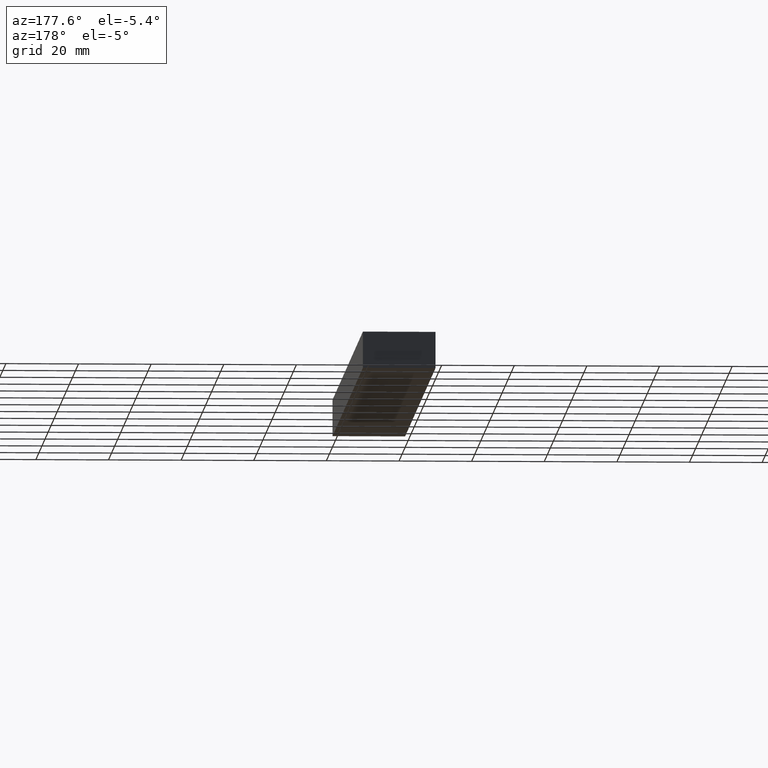
[diagram: clean part render]
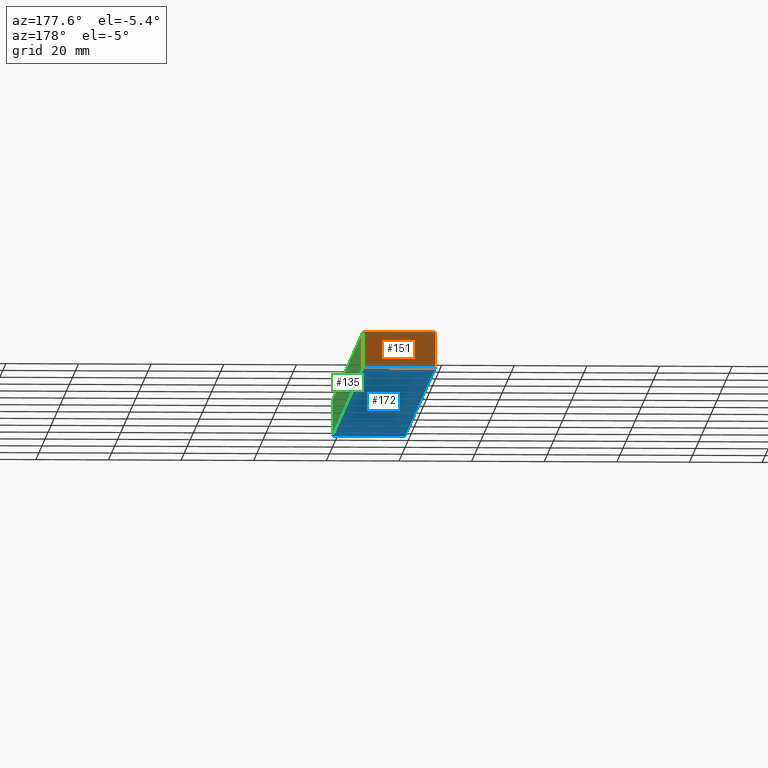
[diagram: same view with three faces highlighted in distinct colors, each labeled with its STEP entity id]
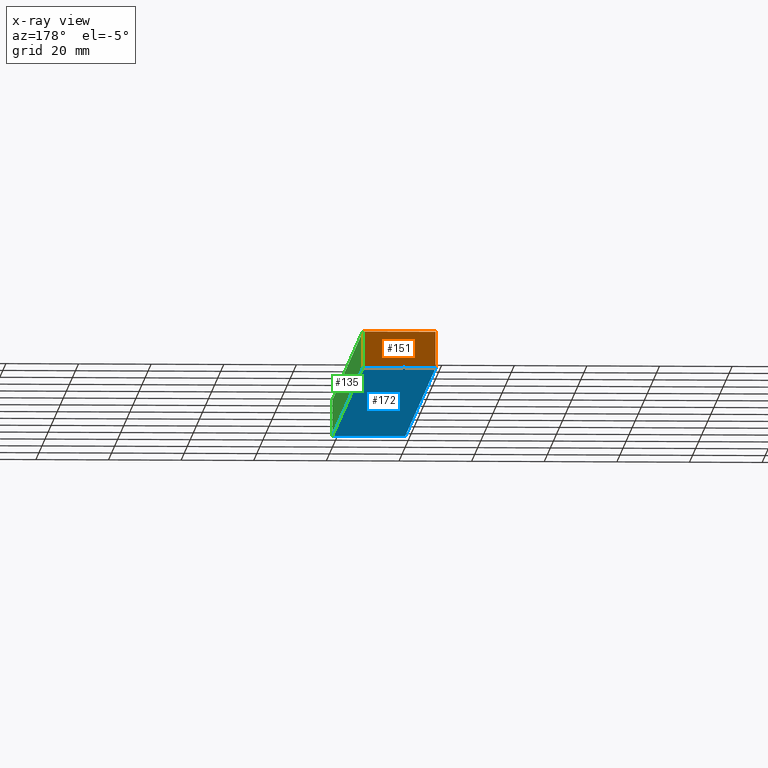
[diagram: x-ray of the same camera — body ghosted, the three highlighted faces saturated]
A machine part, auxiliary view with three faces highlighted in distinct colors.
The next image is the same camera in x-ray (body ghosted, the three faces saturated) — at least one of them is partly hidden behind the body in this view.
Their STEP definitions:

[orange] entity #151 — the highlighted planar face has unit normal (0, 1, 0).
#6 = LINE ( 'NONE', #89, #43 ) ;
#19 = ORIENTED_EDGE ( 'NONE', *, *, #87, .F. ) ;
#32 = CARTESIAN_POINT ( 'NONE',  ( 0.0000000000000000000, 200.0000000000000000, 0.0000000000000000000 ) ) ;
#34 = DIRECTION ( 'NONE',  ( -0.0000000000000000000, -0.0000000000000000000, -1.000000000000000000 ) ) ;
#36 = PLANE ( 'NONE',  #60 ) ;
#42 = FACE_OUTER_BOUND ( 'NONE', #160, .T. ) ;
#43 = VECTOR ( 'NONE', #212, 1000.000000000000000 ) ;
#48 = DIRECTION ( 'NONE',  ( -0.0000000000000000000, -0.0000000000000000000, 1.000000000000000000 ) ) ;
#59 = VERTEX_POINT ( 'NONE', #32 ) ;
#60 = AXIS2_PLACEMENT_3D ( 'NONE', #199, #178, #180 ) ;
#78 = EDGE_CURVE ( 'NONE', #203, #189, #177, .T. ) ;
#85 = VECTOR ( 'NONE', #233, 1000.000000000000000 ) ;
#87 = EDGE_CURVE ( 'NONE', #59, #203, #179, .T. ) ;
#89 = CARTESIAN_POINT ( 'NONE',  ( 0.0000000000000000000, 200.0000000000000000, 10.00000000000000000 ) ) ;
#98 = CARTESIAN_POINT ( 'NONE',  ( 20.00000000000000000, 200.0000000000000000, 10.00000000000000000 ) ) ;
#108 = VERTEX_POINT ( 'NONE', #217 ) ;
#117 = CARTESIAN_POINT ( 'NONE',  ( 0.0000000000000000000, 200.0000000000000000, 0.0000000000000000000 ) ) ;
#124 = CARTESIAN_POINT ( 'NONE',  ( 20.00000000000000000, 200.0000000000000000, 0.0000000000000000000 ) ) ;
#125 = ORIENTED_EDGE ( 'NONE', *, *, #184, .F. ) ;
#138 = VECTOR ( 'NONE', #48, 1000.000000000000000 ) ;
#151 = ADVANCED_FACE ( 'NONE', ( #42 ), #36, .T. ) ;
#154 = CARTESIAN_POINT ( 'NONE',  ( 20.00000000000000000, 200.0000000000000000, 0.0000000000000000000 ) ) ;
#160 = EDGE_LOOP ( 'NONE', ( #19, #222, #125, #209 ) ) ;
#161 = LINE ( 'NONE', #168, #220 ) ;
#168 = CARTESIAN_POINT ( 'NONE',  ( 0.0000000000000000000, 200.0000000000000000, 0.0000000000000000000 ) ) ;
#171 = EDGE_CURVE ( 'NONE', #108, #59, #161, .T. ) ;
#177 = LINE ( 'NONE', #124, #138 ) ;
#178 = DIRECTION ( 'NONE',  ( -0.0000000000000000000, 1.000000000000000000, 0.0000000000000000000 ) ) ;
#179 = LINE ( 'NONE', #117, #85 ) ;
#180 = DIRECTION ( 'NONE',  ( 1.000000000000000000, 0.0000000000000000000, 0.0000000000000000000 ) ) ;
#184 = EDGE_CURVE ( 'NONE', #189, #108, #6, .T. ) ;
#189 = VERTEX_POINT ( 'NONE', #98 ) ;
#199 = CARTESIAN_POINT ( 'NONE',  ( 0.0000000000000000000, 200.0000000000000000, 0.0000000000000000000 ) ) ;
#203 = VERTEX_POINT ( 'NONE', #154 ) ;
#209 = ORIENTED_EDGE ( 'NONE', *, *, #78, .F. ) ;
#212 = DIRECTION ( 'NONE',  ( -1.000000000000000000, -0.0000000000000000000, -0.0000000000000000000 ) ) ;
#217 = CARTESIAN_POINT ( 'NONE',  ( 0.0000000000000000000, 200.0000000000000000, 10.00000000000000000 ) ) ;
#220 = VECTOR ( 'NONE', #34, 1000.000000000000000 ) ;
#222 = ORIENTED_EDGE ( 'NONE', *, *, #171, .F. ) ;
#233 = DIRECTION ( 'NONE',  ( 1.000000000000000000, -0.0000000000000000000, -0.0000000000000000000 ) ) ;

[blue] entity #172 — the highlighted planar face has unit normal (0, 0, -1).
#1 = DIRECTION ( 'NONE',  ( 0.0000000000000000000, 0.0000000000000000000, -1.000000000000000000 ) ) ;
#2 = AXIS2_PLACEMENT_3D ( 'NONE', #114, #1, #67 ) ;
#11 = VECTOR ( 'NONE', #39, 1000.000000000000000 ) ;
#32 = CARTESIAN_POINT ( 'NONE',  ( 0.0000000000000000000, 200.0000000000000000, 0.0000000000000000000 ) ) ;
#35 = EDGE_LOOP ( 'NONE', ( #86, #206, #221, #53 ) ) ;
#39 = DIRECTION ( 'NONE',  ( 1.000000000000000000, -0.0000000000000000000, -0.0000000000000000000 ) ) ;
#40 = CARTESIAN_POINT ( 'NONE',  ( 0.0000000000000000000, 0.0000000000000000000, 0.0000000000000000000 ) ) ;
#46 = VERTEX_POINT ( 'NONE', #141 ) ;
#53 = ORIENTED_EDGE ( 'NONE', *, *, #155, .T. ) ;
#58 = VECTOR ( 'NONE', #97, 1000.000000000000000 ) ;
#59 = VERTEX_POINT ( 'NONE', #32 ) ;
#67 = DIRECTION ( 'NONE',  ( -1.000000000000000000, 0.0000000000000000000, 0.0000000000000000000 ) ) ;
#68 = DIRECTION ( 'NONE',  ( 0.0000000000000000000, -1.000000000000000000, 0.0000000000000000000 ) ) ;
#85 = VECTOR ( 'NONE', #233, 1000.000000000000000 ) ;
#86 = ORIENTED_EDGE ( 'NONE', *, *, #95, .F. ) ;
#87 = EDGE_CURVE ( 'NONE', #59, #203, #179, .T. ) ;
#88 = LINE ( 'NONE', #143, #58 ) ;
#91 = FACE_OUTER_BOUND ( 'NONE', #35, .T. ) ;
#95 = EDGE_CURVE ( 'NONE', #46, #175, #148, .T. ) ;
#97 = DIRECTION ( 'NONE',  ( 0.0000000000000000000, -1.000000000000000000, 0.0000000000000000000 ) ) ;
#112 = PLANE ( 'NONE',  #2 ) ;
#114 = CARTESIAN_POINT ( 'NONE',  ( 0.0000000000000000000, 1000.000000000000000, 0.0000000000000000000 ) ) ;
#117 = CARTESIAN_POINT ( 'NONE',  ( 0.0000000000000000000, 200.0000000000000000, 0.0000000000000000000 ) ) ;
#141 = CARTESIAN_POINT ( 'NONE',  ( 0.0000000000000000000, 0.0000000000000000000, 0.0000000000000000000 ) ) ;
#143 = CARTESIAN_POINT ( 'NONE',  ( 0.0000000000000000000, 1000.000000000000000, 0.0000000000000000000 ) ) ;
#148 = LINE ( 'NONE', #40, #11 ) ;
#154 = CARTESIAN_POINT ( 'NONE',  ( 20.00000000000000000, 200.0000000000000000, 0.0000000000000000000 ) ) ;
#155 = EDGE_CURVE ( 'NONE', #203, #175, #232, .T. ) ;
#159 = VECTOR ( 'NONE', #68, 1000.000000000000000 ) ;
#163 = EDGE_CURVE ( 'NONE', #59, #46, #88, .T. ) ;
#172 = ADVANCED_FACE ( 'NONE', ( #91 ), #112, .T. ) ;
#175 = VERTEX_POINT ( 'NONE', #215 ) ;
#179 = LINE ( 'NONE', #117, #85 ) ;
#203 = VERTEX_POINT ( 'NONE', #154 ) ;
#206 = ORIENTED_EDGE ( 'NONE', *, *, #163, .F. ) ;
#207 = CARTESIAN_POINT ( 'NONE',  ( 20.00000000000000000, 1000.000000000000000, 0.0000000000000000000 ) ) ;
#215 = CARTESIAN_POINT ( 'NONE',  ( 20.00000000000000000, 0.0000000000000000000, 0.0000000000000000000 ) ) ;
#221 = ORIENTED_EDGE ( 'NONE', *, *, #87, .T. ) ;
#232 = LINE ( 'NONE', #207, #159 ) ;
#233 = DIRECTION ( 'NONE',  ( 1.000000000000000000, -0.0000000000000000000, -0.0000000000000000000 ) ) ;

[green] entity #135 — the highlighted planar face has unit normal (1, 0, 0).
#20 = PLANE ( 'NONE',  #191 ) ;
#25 = CARTESIAN_POINT ( 'NONE',  ( 20.00000000000000000, 0.0000000000000000000, 0.0000000000000000000 ) ) ;
#27 = ORIENTED_EDGE ( 'NONE', *, *, #78, .T. ) ;
#33 = VECTOR ( 'NONE', #41, 1000.000000000000000 ) ;
#41 = DIRECTION ( 'NONE',  ( 0.0000000000000000000, -1.000000000000000000, 0.0000000000000000000 ) ) ;
#45 = DIRECTION ( 'NONE',  ( 0.0000000000000000000, 0.0000000000000000000, -1.000000000000000000 ) ) ;
#48 = DIRECTION ( 'NONE',  ( -0.0000000000000000000, -0.0000000000000000000, 1.000000000000000000 ) ) ;
#62 = LINE ( 'NONE', #25, #146 ) ;
#68 = DIRECTION ( 'NONE',  ( 0.0000000000000000000, -1.000000000000000000, 0.0000000000000000000 ) ) ;
#72 = DIRECTION ( 'NONE',  ( -0.0000000000000000000, -0.0000000000000000000, 1.000000000000000000 ) ) ;
#76 = CARTESIAN_POINT ( 'NONE',  ( 20.00000000000000000, 1000.000000000000000, 10.00000000000000000 ) ) ;
#78 = EDGE_CURVE ( 'NONE', #203, #189, #177, .T. ) ;
#90 = CARTESIAN_POINT ( 'NONE',  ( 20.00000000000000000, 0.0000000000000000000, 10.00000000000000000 ) ) ;
#98 = CARTESIAN_POINT ( 'NONE',  ( 20.00000000000000000, 200.0000000000000000, 10.00000000000000000 ) ) ;
#115 = DIRECTION ( 'NONE',  ( 1.000000000000000000, 0.0000000000000000000, 0.0000000000000000000 ) ) ;
#121 = EDGE_CURVE ( 'NONE', #189, #237, #174, .T. ) ;
#122 = FACE_OUTER_BOUND ( 'NONE', #197, .T. ) ;
#124 = CARTESIAN_POINT ( 'NONE',  ( 20.00000000000000000, 200.0000000000000000, 0.0000000000000000000 ) ) ;
#129 = EDGE_CURVE ( 'NONE', #175, #237, #62, .T. ) ;
#135 = ADVANCED_FACE ( 'NONE', ( #122 ), #20, .T. ) ;
#138 = VECTOR ( 'NONE', #48, 1000.000000000000000 ) ;
#145 = ORIENTED_EDGE ( 'NONE', *, *, #129, .F. ) ;
#146 = VECTOR ( 'NONE', #72, 1000.000000000000000 ) ;
#154 = CARTESIAN_POINT ( 'NONE',  ( 20.00000000000000000, 200.0000000000000000, 0.0000000000000000000 ) ) ;
#155 = EDGE_CURVE ( 'NONE', #203, #175, #232, .T. ) ;
#159 = VECTOR ( 'NONE', #68, 1000.000000000000000 ) ;
#174 = LINE ( 'NONE', #76, #33 ) ;
#175 = VERTEX_POINT ( 'NONE', #215 ) ;
#177 = LINE ( 'NONE', #124, #138 ) ;
#189 = VERTEX_POINT ( 'NONE', #98 ) ;
#191 = AXIS2_PLACEMENT_3D ( 'NONE', #208, #115, #45 ) ;
#197 = EDGE_LOOP ( 'NONE', ( #145, #227, #27, #201 ) ) ;
#201 = ORIENTED_EDGE ( 'NONE', *, *, #121, .T. ) ;
#203 = VERTEX_POINT ( 'NONE', #154 ) ;
#207 = CARTESIAN_POINT ( 'NONE',  ( 20.00000000000000000, 1000.000000000000000, 0.0000000000000000000 ) ) ;
#208 = CARTESIAN_POINT ( 'NONE',  ( 20.00000000000000000, 1000.000000000000000, 0.0000000000000000000 ) ) ;
#215 = CARTESIAN_POINT ( 'NONE',  ( 20.00000000000000000, 0.0000000000000000000, 0.0000000000000000000 ) ) ;
#227 = ORIENTED_EDGE ( 'NONE', *, *, #155, .F. ) ;
#232 = LINE ( 'NONE', #207, #159 ) ;
#237 = VERTEX_POINT ( 'NONE', #90 ) ;